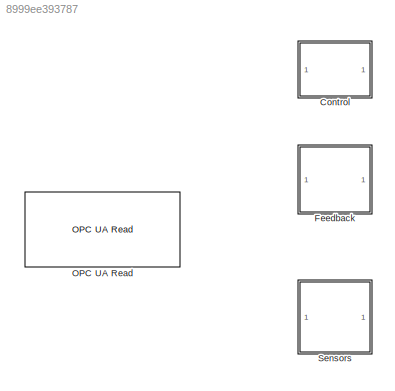
MODEL slx_8999ee393787
KIND model
CONFIG AbsTol = auto
CONFIG EnableMultiTasking = off
CONFIG FixedStep = auto
CONFIG MaxStep = auto
CONFIG MinStep = auto
CONFIG RelTol = 1e-3
CONFIG SampleTimeConstraint = Unconstrained
CONFIG SolverName = VariableStepAuto
CONFIG StartTime = 0.0
CONFIG StopTime = 10.0
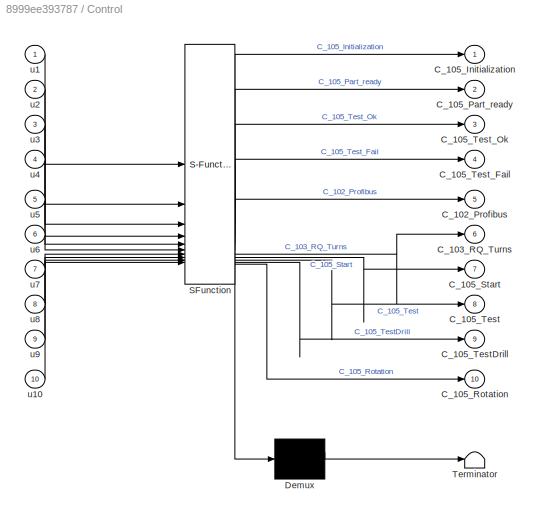
BLOCK [SubSystem] Control
  ErrorFcn = Stateflow.Translate.translate
  PermitHierarchicalResolution = ExplicitOnly
  SFBlockType = MATLAB Function
  TreatAsAtomicUnit = on
BLOCK [Demux] Control/ Demux 
  Outputs = 1
BLOCK [S-Function] Control/ SFunction 
  EnableBusSupport = off
  FunctionName = sf_sfun
  PortCounts = [10 11]
  SFcnIsStateOwnerBlock = off
  SFunctionDeploymentMode = off
  Tag = Stateflow S-Function 1
BLOCK [Terminator] Control/ Terminator 
BLOCK [Outport] Control/C_102_Profibus
  Port = 5
BLOCK [Outport] Control/C_103_RQ_Turns
  Port = 6
BLOCK [Outport] Control/C_105_Initialization
BLOCK [Outport] Control/C_105_Part_ready
  Port = 2
BLOCK [Outport] Control/C_105_Rotation
  Port = 10
BLOCK [Outport] Control/C_105_Start
  Port = 7
BLOCK [Outport] Control/C_105_Test
  Port = 8
BLOCK [Outport] Control/C_105_TestDrill
  Port = 9
BLOCK [Outport] Control/C_105_Test_Fail
  Port = 4
BLOCK [Outport] Control/C_105_Test_Ok
  Port = 3
BLOCK [Inport] Control/u1
BLOCK [Inport] Control/u10
  Port = 10
BLOCK [Inport] Control/u2
  Port = 2
BLOCK [Inport] Control/u3
  Port = 3
BLOCK [Inport] Control/u4
  Port = 4
BLOCK [Inport] Control/u5
  Port = 5
BLOCK [Inport] Control/u6
  Port = 6
BLOCK [Inport] Control/u7
  Port = 7
BLOCK [Inport] Control/u8
  Port = 8
BLOCK [Inport] Control/u9
  Port = 9
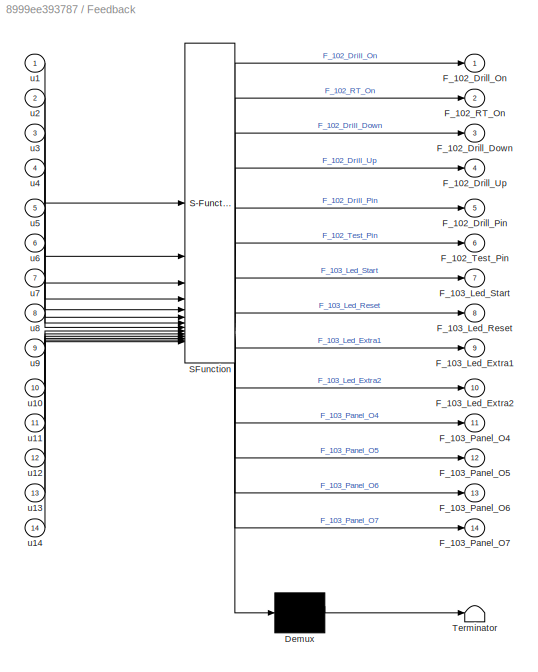
BLOCK [SubSystem] Feedback
  ErrorFcn = Stateflow.Translate.translate
  PermitHierarchicalResolution = ExplicitOnly
  SFBlockType = MATLAB Function
  TreatAsAtomicUnit = on
BLOCK [Demux] Feedback/ Demux 
  Outputs = 1
BLOCK [S-Function] Feedback/ SFunction 
  EnableBusSupport = off
  FunctionName = sf_sfun
  PortCounts = [14 15]
  SFcnIsStateOwnerBlock = off
  SFunctionDeploymentMode = off
  Tag = Stateflow S-Function 3
BLOCK [Terminator] Feedback/ Terminator 
BLOCK [Outport] Feedback/F_102_Drill_Down
  Port = 3
BLOCK [Outport] Feedback/F_102_Drill_On
BLOCK [Outport] Feedback/F_102_Drill_Pin
  Port = 5
BLOCK [Outport] Feedback/F_102_Drill_Up
  Port = 4
BLOCK [Outport] Feedback/F_102_RT_On
  Port = 2
BLOCK [Outport] Feedback/F_102_Test_Pin
  Port = 6
BLOCK [Outport] Feedback/F_103_Led_Extra1
  Port = 9
BLOCK [Outport] Feedback/F_103_Led_Extra2
  Port = 10
BLOCK [Outport] Feedback/F_103_Led_Reset
  Port = 8
BLOCK [Outport] Feedback/F_103_Led_Start
  Port = 7
BLOCK [Outport] Feedback/F_103_Panel_O4
  Port = 11
BLOCK [Outport] Feedback/F_103_Panel_O5
  Port = 12
BLOCK [Outport] Feedback/F_103_Panel_O6
  Port = 13
BLOCK [Outport] Feedback/F_103_Panel_O7
  Port = 14
BLOCK [Inport] Feedback/u1
BLOCK [Inport] Feedback/u10
  Port = 10
BLOCK [Inport] Feedback/u11
  Port = 11
BLOCK [Inport] Feedback/u12
  Port = 12
BLOCK [Inport] Feedback/u13
  Port = 13
BLOCK [Inport] Feedback/u14
  Port = 14
BLOCK [Inport] Feedback/u2
  Port = 2
BLOCK [Inport] Feedback/u3
  Port = 3
BLOCK [Inport] Feedback/u4
  Port = 4
BLOCK [Inport] Feedback/u5
  Port = 5
BLOCK [Inport] Feedback/u6
  Port = 6
BLOCK [Inport] Feedback/u7
  Port = 7
BLOCK [Inport] Feedback/u8
  Port = 8
BLOCK [Inport] Feedback/u9
  Port = 9
BLOCK [Reference] OPC UA Read  REF=opcualib/OPC UA Read
  SourceBlock = opcualib/OPC UA Read
  SourceType = opcUARead
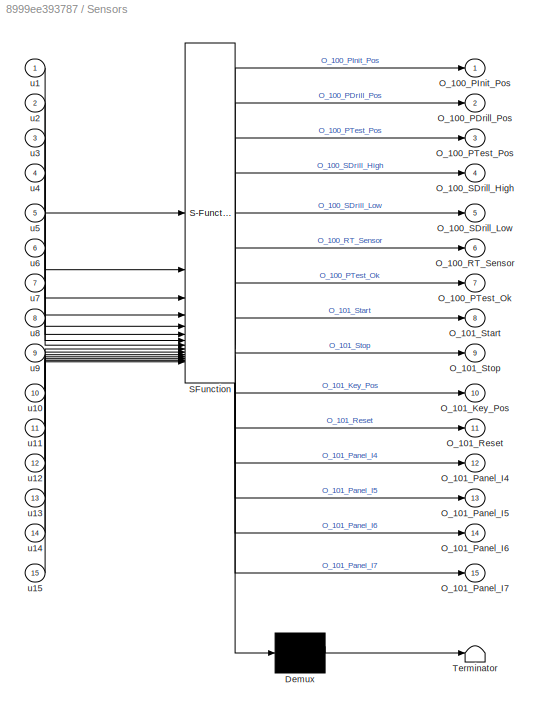
BLOCK [SubSystem] Sensors
  ErrorFcn = Stateflow.Translate.translate
  PermitHierarchicalResolution = ExplicitOnly
  SFBlockType = MATLAB Function
  TreatAsAtomicUnit = on
BLOCK [Demux] Sensors/ Demux 
  Outputs = 1
BLOCK [S-Function] Sensors/ SFunction 
  EnableBusSupport = off
  FunctionName = sf_sfun
  PortCounts = [15 16]
  SFcnIsStateOwnerBlock = off
  SFunctionDeploymentMode = off
  Tag = Stateflow S-Function 4
BLOCK [Terminator] Sensors/ Terminator 
BLOCK [Outport] Sensors/O_100_PDrill_Pos
  Port = 2
BLOCK [Outport] Sensors/O_100_PInit_Pos
BLOCK [Outport] Sensors/O_100_PTest_Ok
  Port = 7
BLOCK [Outport] Sensors/O_100_PTest_Pos
  Port = 3
BLOCK [Outport] Sensors/O_100_RT_Sensor
  Port = 6
BLOCK [Outport] Sensors/O_100_SDrill_High
  Port = 4
BLOCK [Outport] Sensors/O_100_SDrill_Low
  Port = 5
BLOCK [Outport] Sensors/O_101_Key_Pos
  Port = 10
BLOCK [Outport] Sensors/O_101_Panel_I4
  Port = 12
BLOCK [Outport] Sensors/O_101_Panel_I5
  Port = 13
BLOCK [Outport] Sensors/O_101_Panel_I6
  Port = 14
BLOCK [Outport] Sensors/O_101_Panel_I7
  Port = 15
BLOCK [Outport] Sensors/O_101_Reset
  Port = 11
BLOCK [Outport] Sensors/O_101_Start
  Port = 8
BLOCK [Outport] Sensors/O_101_Stop
  Port = 9
BLOCK [Inport] Sensors/u1
BLOCK [Inport] Sensors/u10
  Port = 10
BLOCK [Inport] Sensors/u11
  Port = 11
BLOCK [Inport] Sensors/u12
  Port = 12
BLOCK [Inport] Sensors/u13
  Port = 13
BLOCK [Inport] Sensors/u14
  Port = 14
BLOCK [Inport] Sensors/u15
  Port = 15
BLOCK [Inport] Sensors/u2
  Port = 2
BLOCK [Inport] Sensors/u3
  Port = 3
BLOCK [Inport] Sensors/u4
  Port = 4
BLOCK [Inport] Sensors/u5
  Port = 5
BLOCK [Inport] Sensors/u6
  Port = 6
BLOCK [Inport] Sensors/u7
  Port = 7
BLOCK [Inport] Sensors/u8
  Port = 8
BLOCK [Inport] Sensors/u9
  Port = 9
CHART Control states=1 transitions=1
  STATE_LABEL 'eML_blk_kernel()'
  STATE_LABEL 'SCRIPT:\nfunction [C_105_Initialization, C_105_Part_ready, C_105_Test_Ok,...\nC_105_Test_Fail, C_102_Profibus, C_103_RQ_Turns, C_105_Start,...\nC_105_Test, C_105_TestDrill, C_105_Rotation] = fcn_Control(u1,u2,u3,u4,...\nu5,u6,u7,u8,u9,u10)\n\nC_105_Initialization = u1;\nC_105_Part_ready = u2;\nC_105_Test_Ok = u3;\nC_105_Test_Fail = u4;\nC_102_Profibus = u5;\nC_103_RQ_Turns = u6;\nC_105_Start = u7;\nC_105_Test ...<+49ch>'
CHART Feedback states=1 transitions=1
  STATE_LABEL 'eML_blk_kernel()'
  STATE_LABEL 'SCRIPT:\nfunction [F_102_Drill_On, F_102_RT_On, F_102_Drill_Down, F_102_Drill_Up,...\n          F_102_Drill_Pin, F_102_Test_Pin,F_103_Led_Start,...\n          F_103_Led_Reset, F_103_Led_Extra1, F_103_Led_Extra2,...\n          F_103_Panel_O4, F_103_Panel_O5, F_103_Panel_O6, F_103_Panel_O7] = ...\n          fcn_Feedback(u1,u2,u3,u4,u5,u6,u7,u8,u9,u10,u11,u12,u13,u14)\n\nF_102_Drill_On   = u1;\nF_102_RT_On  ...<+293ch>'
CHART Sensors states=1 transitions=1
  STATE_LABEL 'eML_blk_kernel()'
  STATE_LABEL 'SCRIPT:\nfunction [O_100_PInit_Pos, O_100_PDrill_Pos, O_100_PTest_Pos, ...\n          O_100_SDrill_High, O_100_SDrill_Low, O_100_RT_Sensor,...\n          O_100_PTest_Ok,O_101_Start, O_101_Stop, O_101_Key_Pos,...\n          O_101_Reset,O_101_Panel_I4, O_101_Panel_I5, O_101_Panel_I6,...\n          O_101_Panel_I7] = fcn_Sensors(u1,u2,u3,u4,u5,u6,u7,u8,u9,u10,...\n          u11,u12,u13,u14,u15)\n\n    O_100_P...<+417ch>'
CHART  states=0 transitions=0
CHART  states=0 transitions=0
CHART  states=0 transitions=0
